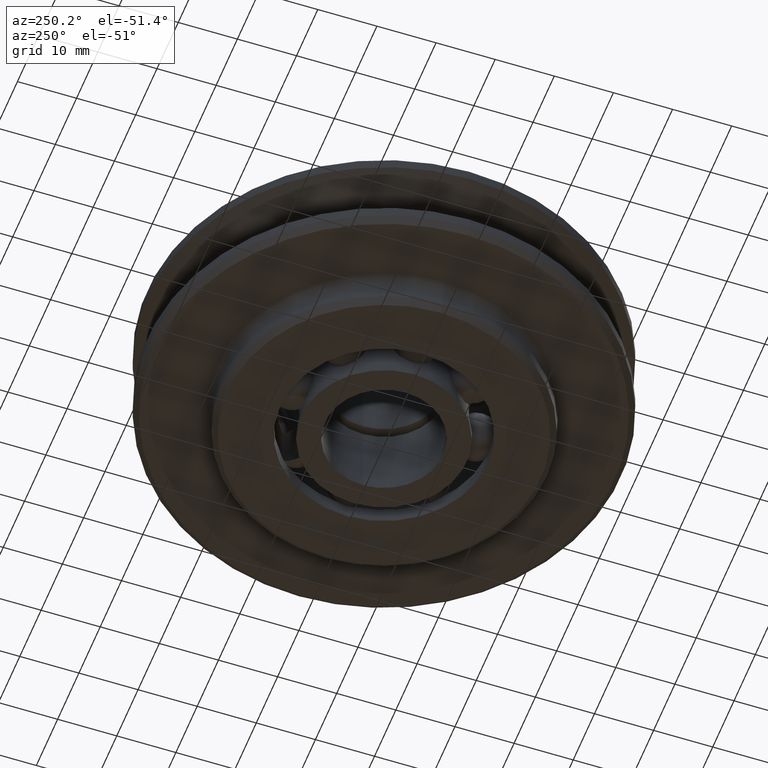
[diagram: clean part render]
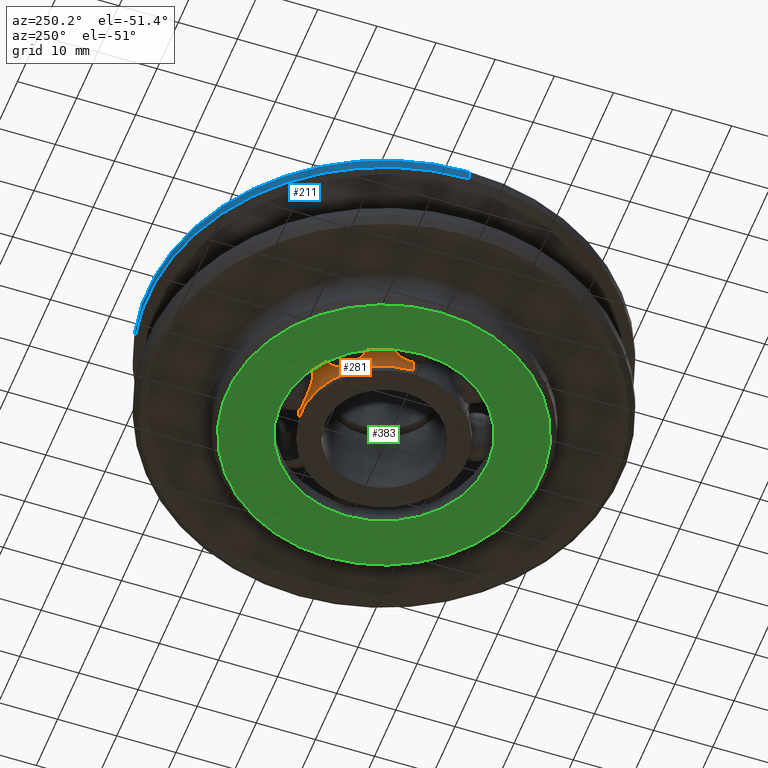
[diagram: same view with three faces highlighted in distinct colors, each labeled with its STEP entity id]
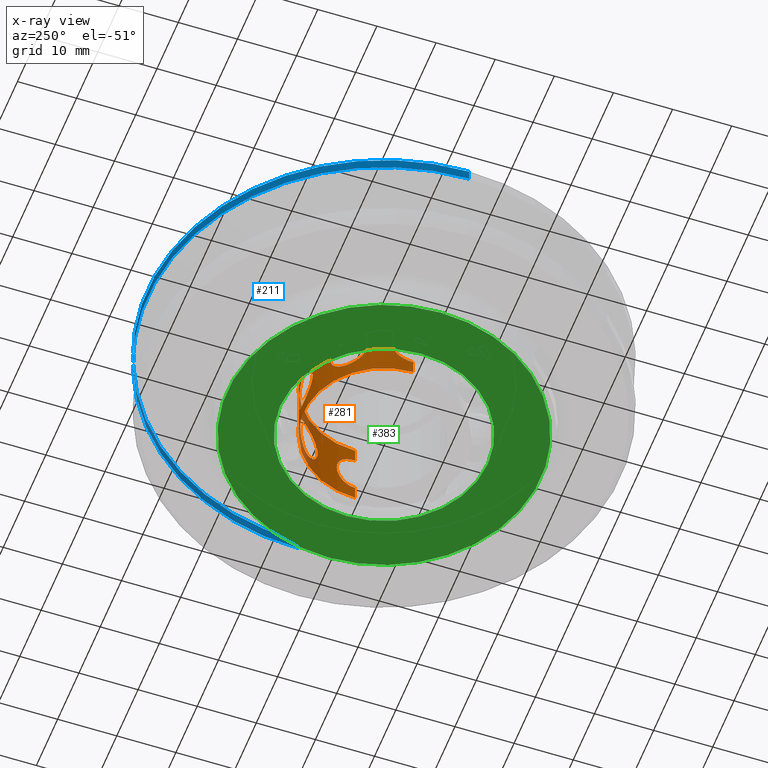
[diagram: x-ray of the same camera — body ghosted, the three highlighted faces saturated]
A machine part, auxiliary view with three faces highlighted in distinct colors.
The next image is the same camera in x-ray (body ghosted, the three faces saturated) — at least one of them is partly hidden behind the body in this view.
Their STEP definitions:

[orange] entity #281 — the highlighted cylindrical surface (partial cylindrical patch) has radius 13.6 mm, axis along (0, 0, -1).
#281=ADVANCED_FACE('',(#626,#627,#628,#629),#630,.T.);
#626=FACE_OUTER_BOUND('',#1036,.T.);
#627=FACE_BOUND('',#1037,.T.);
#628=FACE_BOUND('',#1038,.T.);
#629=FACE_BOUND('',#1039,.T.);
#630=CYLINDRICAL_SURFACE('',#1040,13.6);
#1036=EDGE_LOOP('',(#1907,#1908,#1909,#1910,#1911,#1912,#1913,#1914,#1915));
#1037=EDGE_LOOP('',(#1916,#1917,#1918));
#1038=EDGE_LOOP('',(#1919,#1920,#1921));
#1039=EDGE_LOOP('',(#1922,#1923,#1924));
#1040=AXIS2_PLACEMENT_3D('',#1925,#1926,#1927);
#1907=ORIENTED_EDGE('',*,*,#2924,.T.);
#1908=ORIENTED_EDGE('',*,*,#2964,.F.);
#1909=ORIENTED_EDGE('',*,*,#2965,.F.);
#1910=ORIENTED_EDGE('',*,*,#2931,.T.);
#1911=ORIENTED_EDGE('',*,*,#2949,.F.);
#1912=ORIENTED_EDGE('',*,*,#2929,.T.);
#1913=ORIENTED_EDGE('',*,*,#2871,.F.);
#1914=ORIENTED_EDGE('',*,*,#2926,.T.);
#1915=ORIENTED_EDGE('',*,*,#2966,.F.);
#1916=ORIENTED_EDGE('',*,*,#2967,.F.);
#1917=ORIENTED_EDGE('',*,*,#2968,.F.);
#1918=ORIENTED_EDGE('',*,*,#2880,.F.);
#1919=ORIENTED_EDGE('',*,*,#2969,.F.);
#1920=ORIENTED_EDGE('',*,*,#2970,.F.);
#1921=ORIENTED_EDGE('',*,*,#2894,.F.);
#1922=ORIENTED_EDGE('',*,*,#2971,.F.);
#1923=ORIENTED_EDGE('',*,*,#2972,.F.);
#1924=ORIENTED_EDGE('',*,*,#2915,.F.);
#1925=CARTESIAN_POINT('',(0.0,0.0,-7.0));
#1926=DIRECTION('',(0.0,0.0,-1.0));
#1927=DIRECTION('',(1.0,0.0,0.0));
#2871=EDGE_CURVE('',#3618,#3621,#3622,.T.);
#2880=EDGE_CURVE('',#3633,#3636,#3637,.T.);
#2894=EDGE_CURVE('',#3659,#3661,#3662,.T.);
#2915=EDGE_CURVE('',#3693,#3695,#3696,.T.);
#2924=EDGE_CURVE('',#3708,#3553,#3709,.T.);
#2926=EDGE_CURVE('',#3618,#3710,#3712,.T.);
#2929=EDGE_CURVE('',#3716,#3621,#3717,.T.);
#2931=EDGE_CURVE('',#3555,#3718,#3720,.T.);
#2949=EDGE_CURVE('',#3716,#3718,#3750,.T.);
#2964=EDGE_CURVE('',#3765,#3553,#3766,.T.);
#2965=EDGE_CURVE('',#3555,#3765,#3767,.T.);
#2966=EDGE_CURVE('',#3708,#3710,#3768,.T.);
#2967=EDGE_CURVE('',#3769,#3633,#3770,.T.);
#2968=EDGE_CURVE('',#3636,#3769,#3771,.T.);
#2969=EDGE_CURVE('',#3772,#3659,#3773,.T.);
#2970=EDGE_CURVE('',#3661,#3772,#3774,.T.);
#2971=EDGE_CURVE('',#3775,#3693,#3776,.T.);
#2972=EDGE_CURVE('',#3695,#3775,#3777,.T.);
#3553=VERTEX_POINT('',#6102);
#3555=VERTEX_POINT('',#6104);
#3618=VERTEX_POINT('',#6469);
#3621=VERTEX_POINT('',#6472);
#3622=B_SPLINE_CURVE_WITH_KNOTS('',3,(#6473,#6474,#6475,#6476,#6477,#6478,#6479,#6480,#6481,#6482,#6483,#6484,#6485,#6486,#6487,#6488,#6489,#6490,#6491,#6492,#6493,#6494,#6495,#6496,#6497,#6498,#6499,#6500,#6501,#6502,#6503,#6504,#6505,#6506),.UNSPECIFIED.,.F.,.F.,(4,2,2,2,2,2,2,2,2,2,2,2,2,2,2,2,4),(5.11884378408548,5.51801321408463,5.91718264408379,6.31635207408295,6.71552150408211,7.59606302010432,8.47660453612653,9.35714605214875,10.237687568171,11.1182290841932,11.9987706002154,12.8793121162376,13.7598536322598,14.159023062259,14.5581924922581,14.9573619222573,15.3565313522564),.UNSPECIFIED.);
#3633=VERTEX_POINT('',#6561);
#3636=VERTEX_POINT('',#6564);
#3637=B_SPLINE_CURVE_WITH_KNOTS('',3,(#6565,#6566,#6567,#6568,#6569,#6570,#6571,#6572,#6573,#6574,#6575,#6576,#6577,#6578,#6579,#6580,#6581,#6582,#6583,#6584,#6585,#6586,#6587,#6588,#6589,#6590,#6591,#6592,#6593,#6594,#6595,#6596,#6597,#6598),.UNSPECIFIED.,.F.,.F.,(4,2,2,2,2,2,2,2,2,2,2,2,2,2,2,2,4),(5.11884378408547,5.51801321408463,5.91718264408379,6.31635207408295,6.7155215040821,7.59606302010432,8.47660453612653,9.35714605214874,10.237687568171,11.1182290841932,11.9987706002154,12.8793121162376,13.7598536322598,14.159023062259,14.5581924922581,14.9573619222573,15.3565313522564),.UNSPECIFIED.);
#3659=VERTEX_POINT('',#6708);
#3661=VERTEX_POINT('',#6710);
#3662=B_SPLINE_CURVE_WITH_KNOTS('',3,(#6711,#6712,#6713,#6714,#6715,#6716,#6717,#6718,#6719,#6720,#6721,#6722,#6723,#6724,#6725,#6726,#6727,#6728,#6729,#6730,#6731,#6732,#6733,#6734,#6735,#6736,#6737,#6738,#6739,#6740,#6741,#6742,#6743,#6744),.UNSPECIFIED.,.F.,.F.,(4,2,2,2,2,2,2,2,2,2,2,2,2,2,2,2,4),(5.11884378408548,5.51801321408464,5.9171826440838,6.31635207408296,6.71552150408211,7.59606302010432,8.47660453612654,9.35714605214875,10.237687568171,11.1182290841932,11.9987706002154,12.8793121162376,13.7598536322598,14.159023062259,14.5581924922581,14.9573619222573,15.3565313522564),.UNSPECIFIED.);
#3693=VERTEX_POINT('',#6857);
#3695=VERTEX_POINT('',#6859);
#3696=B_SPLINE_CURVE_WITH_KNOTS('',3,(#6860,#6861,#6862,#6863,#6864,#6865,#6866,#6867,#6868,#6869,#6870,#6871,#6872,#6873,#6874,#6875,#6876,#6877,#6878,#6879,#6880,#6881,#6882,#6883,#6884,#6885,#6886,#6887,#6888,#6889,#6890,#6891,#6892,#6893),.UNSPECIFIED.,.F.,.F.,(4,2,2,2,2,2,2,2,2,2,2,2,2,2,2,2,4),(5.11884378408547,5.51801321408463,5.91718264408379,6.31635207408294,6.7155215040821,7.59606302010431,8.47660453612653,9.35714605214874,10.237687568171,11.1182290841932,11.9987706002154,12.8793121162376,13.7598536322598,14.159023062259,14.5581924922581,14.9573619222573,15.3565313522564),.UNSPECIFIED.);
#3708=VERTEX_POINT('',#7007);
#3709=LINE('',#7008,#7009);
#3710=VERTEX_POINT('',#7010);
#3712=LINE('',#7012,#7013);
#3716=VERTEX_POINT('',#7051);
#3717=LINE('',#7052,#7053);
#3718=VERTEX_POINT('',#7054);
#3720=LINE('',#7056,#7057);
#3750=CIRCLE('',#7093,13.6);
#3765=VERTEX_POINT('',#7108);
#3766=B_SPLINE_CURVE_WITH_KNOTS('',3,(#7109,#7110,#7111,#7112,#7113,#7114,#7115,#7116,#7117,#7118,#7119,#7120,#7121,#7122,#7123,#7124,#7125,#7126),.UNSPECIFIED.,.F.,.F.,(4,2,2,2,2,2,2,2,4),(0.0,0.880541516022214,1.76108303204443,2.64162454806664,3.52216606408886,3.92133549408801,4.32050492408717,4.71967435408632,5.11884378408548),.UNSPECIFIED.);
#3767=B_SPLINE_CURVE_WITH_KNOTS('',3,(#7127,#7128,#7129,#7130,#7131,#7132,#7133,#7134,#7135,#7136,#7137,#7138,#7139,#7140,#7141,#7142,#7143,#7144),.UNSPECIFIED.,.F.,.F.,(4,2,2,2,2,2,2,2,4),(15.3565313522564,15.7557007822556,16.1548702122548,16.5540396422539,16.9532090722531,17.8337505882753,18.7142921042975,19.5948336203197,20.4753751363419),.UNSPECIFIED.);
#3768=CIRCLE('',#7145,13.6);
#3769=VERTEX_POINT('',#7146);
#3770=B_SPLINE_CURVE_WITH_KNOTS('',3,(#7147,#7148,#7149,#7150,#7151,#7152,#7153,#7154,#7155,#7156,#7157,#7158,#7159,#7160,#7161,#7162,#7163,#7164),.UNSPECIFIED.,.F.,.F.,(4,2,2,2,2,2,2,2,4),(0.0,0.880541516022213,1.76108303204443,2.64162454806664,3.52216606408885,3.92133549408801,4.32050492408716,4.71967435408632,5.11884378408547),.UNSPECIFIED.);
#3771=B_SPLINE_CURVE_WITH_KNOTS('',3,(#7165,#7166,#7167,#7168,#7169,#7170,#7171,#7172,#7173,#7174,#7175,#7176,#7177,#7178,#7179,#7180,#7181,#7182),.UNSPECIFIED.,.F.,.F.,(4,2,2,2,2,2,2,2,4),(15.3565313522564,15.7557007822556,16.1548702122547,16.5540396422539,16.953209072253,17.8337505882753,18.7142921042975,19.5948336203197,20.4753751363419),.UNSPECIFIED.);
#3772=VERTEX_POINT('',#7183);
#3773=B_SPLINE_CURVE_WITH_KNOTS('',3,(#7184,#7185,#7186,#7187,#7188,#7189,#7190,#7191,#7192,#7193,#7194,#7195,#7196,#7197,#7198,#7199,#7200,#7201),.UNSPECIFIED.,.F.,.F.,(4,2,2,2,2,2,2,2,4),(0.0,0.880541516022215,1.76108303204443,2.64162454806664,3.52216606408886,3.92133549408802,4.32050492408717,4.71967435408633,5.11884378408548),.UNSPECIFIED.);
#3774=B_SPLINE_CURVE_WITH_KNOTS('',3,(#7202,#7203,#7204,#7205,#7206,#7207,#7208,#7209,#7210,#7211,#7212,#7213,#7214,#7215,#7216,#7217,#7218,#7219),.UNSPECIFIED.,.F.,.F.,(4,2,2,2,2,2,2,2,4),(15.3565313522564,15.7557007822556,16.1548702122548,16.5540396422539,16.9532090722531,17.8337505882753,18.7142921042975,19.5948336203197,20.4753751363419),.UNSPECIFIED.);
#3775=VERTEX_POINT('',#7220);
#3776=B_SPLINE_CURVE_WITH_KNOTS('',3,(#7221,#7222,#7223,#7224,#7225,#7226,#7227,#7228,#7229,#7230,#7231,#7232,#7233,#7234,#7235,#7236,#7237,#7238),.UNSPECIFIED.,.F.,.F.,(4,2,2,2,2,2,2,2,4),(0.0,0.880541516022213,1.76108303204443,2.64162454806664,3.52216606408885,3.92133549408801,4.32050492408716,4.71967435408632,5.11884378408547),.UNSPECIFIED.);
#3777=B_SPLINE_CURVE_WITH_KNOTS('',3,(#7239,#7240,#7241,#7242,#7243,#7244,#7245,#7246,#7247,#7248,#7249,#7250,#7251,#7252,#7253,#7254,#7255,#7256),.UNSPECIFIED.,.F.,.F.,(4,2,2,2,2,2,2,2,4),(15.3565313522564,15.7557007822556,16.1548702122547,16.5540396422539,16.953209072253,17.8337505882753,18.7142921042975,19.5948336203197,20.4753751363419),.UNSPECIFIED.);
#6102=CARTESIAN_POINT('',(13.6,8.25820929516293E-016,-3.52557918495759));
#6104=CARTESIAN_POINT('',(13.6,8.327598234202E-016,-10.4744208150424));
#6469=CARTESIAN_POINT('',(-13.6,-1.66542709188907E-015,-3.52557918495759));
#6472=CARTESIAN_POINT('',(-13.6,-1.6931826675047E-015,-10.4744208150424));
#6473=CARTESIAN_POINT('',(-13.6,-1.66533453693773E-015,-3.52557918495759));
#6474=CARTESIAN_POINT('',(-13.6,0.133056476666384,-3.52557918495758));
#6475=CARTESIAN_POINT('',(-13.5980055949989,0.271707385761775,-3.53443566578162));
#6476=CARTESIAN_POINT('',(-13.5895360727834,0.551443914183474,-3.57252557018243));
#6477=CARTESIAN_POINT('',(-13.5830617961631,0.692529474987496,-3.60175961045754));
#6478=CARTESIAN_POINT('',(-13.5661500191705,0.968884924298131,-3.67979320654764));
#6479=CARTESIAN_POINT('',(-13.5557126732144,1.10427590195003,-3.72862432216197));
#6480=CARTESIAN_POINT('',(-13.5322258131544,1.36221726826129,-3.84186666432335));
#6481=CARTESIAN_POINT('',(-13.5191882204582,1.48477073564192,-3.9062733503762));
#6482=CARTESIAN_POINT('',(-13.4762482873043,1.84769157317782,-4.12628894471587));
#6483=CARTESIAN_POINT('',(-13.4416816527091,2.07940766338172,-4.31461867790565));
#6484=CARTESIAN_POINT('',(-13.3722648655813,2.48702115072024,-4.75069955585992));
#6485=CARTESIAN_POINT('',(-13.3375294426858,2.66294674167266,-4.9984426023022));
#6486=CARTESIAN_POINT('',(-13.2777950706208,2.94637594930855,-5.53218860418191));
#6487=CARTESIAN_POINT('',(-13.2528229399806,3.05418339474074,-5.8187738890709));
#6488=CARTESIAN_POINT('',(-13.219198442041,3.19658327422026,-6.40591608579654));
#6489=CARTESIAN_POINT('',(-13.2105935483871,3.23113263412587,-6.70648616132593));
#6490=CARTESIAN_POINT('',(-13.2105935483871,3.23113263412587,-7.29351383867407));
#6491=CARTESIAN_POINT('',(-13.219198442041,3.19658327422026,-7.59408391420346));
#6492=CARTESIAN_POINT('',(-13.2528229399806,3.05418339474075,-8.1812261109291));
#6493=CARTESIAN_POINT('',(-13.2777950706208,2.94637594930854,-8.46781139581809));
#6494=CARTESIAN_POINT('',(-13.3375294426858,2.66294674167265,-9.0015573976978));
#6495=CARTESIAN_POINT('',(-13.3722648655813,2.48702115072023,-9.24930044414008));
#6496=CARTESIAN_POINT('',(-13.4416816527091,2.07940766338172,-9.68538132209435));
#6497=CARTESIAN_POINT('',(-13.4762482873043,1.84769157317782,-9.87371105528413));
#6498=CARTESIAN_POINT('',(-13.5191882204582,1.48477073564192,-10.0937266496238));
#6499=CARTESIAN_POINT('',(-13.5322258131544,1.36221726826129,-10.1581333356767));
#6500=CARTESIAN_POINT('',(-13.5557126732144,1.10427590195004,-10.271375677838));
#6501=CARTESIAN_POINT('',(-13.5661500191705,0.968884924298133,-10.3202067934524));
#6502=CARTESIAN_POINT('',(-13.5830617961631,0.692529474987497,-10.3982403895425));
#6503=CARTESIAN_POINT('',(-13.5895360727834,0.551443914183474,-10.4274744298176));
#6504=CARTESIAN_POINT('',(-13.5980055949989,0.271707385761774,-10.4655643342184));
#6505=CARTESIAN_POINT('',(-13.6,0.133056476666384,-10.4744208150424));
#6506=CARTESIAN_POINT('',(-13.6,-1.6931826675047E-015,-10.4744208150424));
#6561=CARTESIAN_POINT('',(-9.61665222413705,9.61665222413705,-3.52557918495759));
#6564=CARTESIAN_POINT('',(-9.61665222413705,9.61665222413705,-10.4744208150424));
#6565=CARTESIAN_POINT('',(-9.61665222413705,9.61665222413705,-3.52557918495759));
#6566=CARTESIAN_POINT('',(-9.52256708720545,9.71073736106864,-3.52557918495759));
#6567=CARTESIAN_POINT('',(-9.42311583186574,9.80736810180698,-3.53443566578163));
#6568=CARTESIAN_POINT('',(-9.21932337908113,9.9991828414075,-3.57252557018244));
#6569=CARTESIAN_POINT('',(-9.11498281740763,10.0943673932781,-3.60175961045754));
#6570=CARTESIAN_POINT('',(-8.90761157298885,10.2778217733101,-3.67979320654765));
#6571=CARTESIAN_POINT('',(-8.80449537647654,10.3661773336161,-3.72862432216197));
#6572=CARTESIAN_POINT('',(-8.60549556919218,10.5319617048661,-3.84186666432335));
#6573=CARTESIAN_POINT('',(-8.50961821114352,10.609401122503,-3.90627335037621));
#6574=CARTESIAN_POINT('',(-8.22263130797122,10.8356617898418,-4.12628894471588));
#6575=CARTESIAN_POINT('',(-8.03434098755291,10.9750675068099,-4.31461867790566));
#6576=CARTESIAN_POINT('',(-7.69702964564653,11.2142086869038,-4.75069955585992));
#6577=CARTESIAN_POINT('',(-7.548069814223,11.3140452121737,-4.99844260230221));
#6578=CARTESIAN_POINT('',(-7.30541651996024,11.4722213473223,-5.53218860418191));
#6579=CARTESIAN_POINT('',(-7.21152718131637,11.5307947601334,-5.81877388907091));
#6580=CARTESIAN_POINT('',(-7.08705915038918,11.6077105700465,-6.40591608579654));
#6581=CARTESIAN_POINT('',(-7.05654448506021,11.6260560780673,-6.70648616132593));
#6582=CARTESIAN_POINT('',(-7.05654448506021,11.6260560780673,-7.29351383867407));
#6583=CARTESIAN_POINT('',(-7.08705915038918,11.6077105700465,-7.59408391420346));
#6584=CARTESIAN_POINT('',(-7.21152718131637,11.5307947601334,-8.18122611092909));
#6585=CARTESIAN_POINT('',(-7.30541651996024,11.4722213473223,-8.46781139581809));
#6586=CARTESIAN_POINT('',(-7.548069814223,11.3140452121737,-9.0015573976978));
#6587=CARTESIAN_POINT('',(-7.69702964564653,11.2142086869038,-9.24930044414008));
#6588=CARTESIAN_POINT('',(-8.03434098755291,10.9750675068099,-9.68538132209435));
#6589=CARTESIAN_POINT('',(-8.22263130797122,10.8356617898418,-9.87371105528413));
#6590=CARTESIAN_POINT('',(-8.50961821114352,10.609401122503,-10.0937266496238));
#6591=CARTESIAN_POINT('',(-8.60549556919218,10.5319617048661,-10.1581333356767));
#6592=CARTESIAN_POINT('',(-8.80449537647654,10.3661773336161,-10.271375677838));
#6593=CARTESIAN_POINT('',(-8.90761157298885,10.2778217733101,-10.3202067934524));
#6594=CARTESIAN_POINT('',(-9.11498281740763,10.0943673932781,-10.3982403895425));
#6595=CARTESIAN_POINT('',(-9.21932337908112,9.9991828414075,-10.4274744298176));
#6596=CARTESIAN_POINT('',(-9.42311583186574,9.80736810180698,-10.4655643342184));
#6597=CARTESIAN_POINT('',(-9.52256708720546,9.71073736106864,-10.4744208150424));
#6598=CARTESIAN_POINT('',(-9.61665222413705,9.61665222413705,-10.4744208150424));
#6708=CARTESIAN_POINT('',(2.06617063291693E-015,13.6,-3.52557918495759));
#6710=CARTESIAN_POINT('',(2.02453726949349E-015,13.6,-10.4744208150424));
#6711=CARTESIAN_POINT('',(3.89965837399586E-015,13.6,-3.52557918495759));
#6712=CARTESIAN_POINT('',(0.133056476666389,13.6,-3.52557918495759));
#6713=CARTESIAN_POINT('',(0.271707385761779,13.5980055949989,-3.53443566578162));
#6714=CARTESIAN_POINT('',(0.551443914183478,13.5895360727834,-3.57252557018243));
#6715=CARTESIAN_POINT('',(0.6925294749875,13.5830617961631,-3.60175961045754));
#6716=CARTESIAN_POINT('',(0.968884924298136,13.5661500191705,-3.67979320654764));
#6717=CARTESIAN_POINT('',(1.10427590195004,13.5557126732144,-3.72862432216197));
#6718=CARTESIAN_POINT('',(1.36221726826129,13.5322258131544,-3.84186666432335));
#6719=CARTESIAN_POINT('',(1.48477073564192,13.5191882204582,-3.9062733503762));
#6720=CARTESIAN_POINT('',(1.84769157317783,13.4762482873043,-4.12628894471587));
#6721=CARTESIAN_POINT('',(2.07940766338172,13.4416816527091,-4.31461867790565));
#6722=CARTESIAN_POINT('',(2.48702115072024,13.3722648655813,-4.75069955585992));
#6723=CARTESIAN_POINT('',(2.66294674167266,13.3375294426858,-4.9984426023022));
#6724=CARTESIAN_POINT('',(2.94637594930855,13.2777950706208,-5.53218860418191));
#6725=CARTESIAN_POINT('',(3.05418339474075,13.2528229399806,-5.81877388907091));
#6726=CARTESIAN_POINT('',(3.19658327422026,13.219198442041,-6.40591608579654));
#6727=CARTESIAN_POINT('',(3.23113263412587,13.2105935483871,-6.70648616132593));
#6728=CARTESIAN_POINT('',(3.23113263412587,13.2105935483871,-7.29351383867407));
#6729=CARTESIAN_POINT('',(3.19658327422026,13.219198442041,-7.59408391420346));
#6730=CARTESIAN_POINT('',(3.05418339474075,13.2528229399806,-8.18122611092909));
#6731=CARTESIAN_POINT('',(2.94637594930855,13.2777950706208,-8.46781139581809));
#6732=CARTESIAN_POINT('',(2.66294674167266,13.3375294426858,-9.00155739769779));
#6733=CARTESIAN_POINT('',(2.48702115072024,13.3722648655813,-9.24930044414008));
#6734=CARTESIAN_POINT('',(2.07940766338173,13.4416816527091,-9.68538132209434));
#6735=CARTESIAN_POINT('',(1.84769157317783,13.4762482873043,-9.87371105528413));
#6736=CARTESIAN_POINT('',(1.48477073564192,13.5191882204582,-10.0937266496238));
#6737=CARTESIAN_POINT('',(1.36221726826129,13.5322258131544,-10.1581333356767));
#6738=CARTESIAN_POINT('',(1.10427590195004,13.5557126732144,-10.271375677838));
#6739=CARTESIAN_POINT('',(0.968884924298135,13.5661500191705,-10.3202067934524));
#6740=CARTESIAN_POINT('',(0.6925294749875,13.5830617961631,-10.3982403895425));
#6741=CARTESIAN_POINT('',(0.551443914183478,13.5895360727834,-10.4274744298176));
#6742=CARTESIAN_POINT('',(0.271707385761779,13.5980055949989,-10.4655643342184));
#6743=CARTESIAN_POINT('',(0.133056476666388,13.6,-10.4744208150424));
#6744=CARTESIAN_POINT('',(2.02453726949349E-015,13.6,-10.4744208150424));
#6857=CARTESIAN_POINT('',(9.61665222413705,9.61665222413705,-3.52557918495759));
#6859=CARTESIAN_POINT('',(9.61665222413705,9.61665222413705,-10.4744208150424));
#6860=CARTESIAN_POINT('',(9.61665222413705,9.61665222413705,-3.52557918495759));
#6861=CARTESIAN_POINT('',(9.71073736106863,9.52256708720545,-3.52557918495759));
#6862=CARTESIAN_POINT('',(9.80736810180698,9.42311583186574,-3.53443566578163));
#6863=CARTESIAN_POINT('',(9.9991828414075,9.21932337908112,-3.57252557018244));
#6864=CARTESIAN_POINT('',(10.0943673932781,9.11498281740763,-3.60175961045754));
#6865=CARTESIAN_POINT('',(10.2778217733101,8.90761157298885,-3.67979320654765));
#6866=CARTESIAN_POINT('',(10.3661773336161,8.80449537647654,-3.72862432216197));
#6867=CARTESIAN_POINT('',(10.5319617048661,8.60549556919218,-3.84186666432335));
#6868=CARTESIAN_POINT('',(10.609401122503,8.50961821114352,-3.9062733503762));
#6869=CARTESIAN_POINT('',(10.8356617898418,8.22263130797122,-4.12628894471587));
#6870=CARTESIAN_POINT('',(10.9750675068099,8.03434098755291,-4.31461867790566));
#6871=CARTESIAN_POINT('',(11.2142086869038,7.69702964564653,-4.75069955585992));
#6872=CARTESIAN_POINT('',(11.3140452121737,7.548069814223,-4.99844260230221));
#6873=CARTESIAN_POINT('',(11.4722213473223,7.30541651996024,-5.53218860418191));
#6874=CARTESIAN_POINT('',(11.5307947601334,7.21152718131637,-5.81877388907091));
#6875=CARTESIAN_POINT('',(11.6077105700465,7.08705915038918,-6.40591608579654));
#6876=CARTESIAN_POINT('',(11.6260560780673,7.05654448506021,-6.70648616132593));
#6877=CARTESIAN_POINT('',(11.6260560780673,7.05654448506021,-7.29351383867407));
#6878=CARTESIAN_POINT('',(11.6077105700465,7.08705915038918,-7.59408391420346));
#6879=CARTESIAN_POINT('',(11.5307947601334,7.21152718131637,-8.18122611092909));
#6880=CARTESIAN_POINT('',(11.4722213473223,7.30541651996024,-8.46781139581809));
#6881=CARTESIAN_POINT('',(11.3140452121737,7.548069814223,-9.0015573976978));
#6882=CARTESIAN_POINT('',(11.2142086869038,7.69702964564653,-9.24930044414008));
#6883=CARTESIAN_POINT('',(10.9750675068099,8.03434098755291,-9.68538132209435));
#6884=CARTESIAN_POINT('',(10.8356617898418,8.22263130797122,-9.87371105528413));
#6885=CARTESIAN_POINT('',(10.609401122503,8.50961821114352,-10.0937266496238));
#6886=CARTESIAN_POINT('',(10.5319617048661,8.60549556919219,-10.1581333356767));
#6887=CARTESIAN_POINT('',(10.3661773336161,8.80449537647654,-10.271375677838));
#6888=CARTESIAN_POINT('',(10.2778217733101,8.90761157298886,-10.3202067934524));
#6889=CARTESIAN_POINT('',(10.0943673932781,9.11498281740763,-10.3982403895425));
#6890=CARTESIAN_POINT('',(9.9991828414075,9.21932337908112,-10.4274744298176));
#6891=CARTESIAN_POINT('',(9.80736810180698,9.42311583186574,-10.4655643342184));
#6892=CARTESIAN_POINT('',(9.71073736106864,9.52256708720546,-10.4744208150424));
#6893=CARTESIAN_POINT('',(9.61665222413705,9.61665222413705,-10.4744208150424));
#7007=CARTESIAN_POINT('',(13.6,0.0,-1.0));
#7008=CARTESIAN_POINT('',(13.6,1.6655196468404E-015,-7.0));
#7009=VECTOR('',#8562,1.0);
#7010=CARTESIAN_POINT('',(-13.6,-1.6655196468404E-015,-1.0));
#7012=CARTESIAN_POINT('',(-13.6,-1.6655196468404E-015,-7.0));
#7013=VECTOR('',#8566,1.0);
#7051=CARTESIAN_POINT('',(-13.6,-1.6655196468404E-015,-13.0));
#7052=CARTESIAN_POINT('',(-13.6,-1.6655196468404E-015,-7.0));
#7053=VECTOR('',#8567,1.0);
#7054=CARTESIAN_POINT('',(13.6,0.0,-13.0));
#7056=CARTESIAN_POINT('',(13.6,1.6655196468404E-015,-7.0));
#7057=VECTOR('',#8571,1.0);
#7093=AXIS2_PLACEMENT_3D('',#8599,#8600,#8601);
#7108=CARTESIAN_POINT('',(13.2105935483871,3.23113263412587,-7.0));
#7109=CARTESIAN_POINT('',(13.2105935483871,3.23113263412587,-7.0));
#7110=CARTESIAN_POINT('',(13.2105935483871,3.23113263412587,-6.70648616132593));
#7111=CARTESIAN_POINT('',(13.219198442041,3.19658327422026,-6.40591608579654));
#7112=CARTESIAN_POINT('',(13.2528229399806,3.05418339474075,-5.8187738890709));
#7113=CARTESIAN_POINT('',(13.2777950706208,2.94637594930855,-5.53218860418191));
#7114=CARTESIAN_POINT('',(13.3375294426858,2.66294674167265,-4.9984426023022));
#7115=CARTESIAN_POINT('',(13.3722648655813,2.48702115072023,-4.75069955585992));
#7116=CARTESIAN_POINT('',(13.4416816527091,2.07940766338172,-4.31461867790565));
#7117=CARTESIAN_POINT('',(13.4762482873043,1.84769157317782,-4.12628894471587));
#7118=CARTESIAN_POINT('',(13.5191882204582,1.48477073564191,-3.9062733503762));
#7119=CARTESIAN_POINT('',(13.5322258131545,1.36221726826128,-3.84186666432335));
#7120=CARTESIAN_POINT('',(13.5557126732144,1.10427590195003,-3.72862432216197));
#7121=CARTESIAN_POINT('',(13.5661500191705,0.968884924298131,-3.67979320654764));
#7122=CARTESIAN_POINT('',(13.5830617961631,0.692529474987496,-3.60175961045754));
#7123=CARTESIAN_POINT('',(13.5895360727834,0.551443914183474,-3.57252557018243));
#7124=CARTESIAN_POINT('',(13.5980055949989,0.271707385761776,-3.53443566578162));
#7125=CARTESIAN_POINT('',(13.6,0.133056476666386,-3.52557918495759));
#7126=CARTESIAN_POINT('',(13.6,8.25820929516293E-016,-3.52557918495759));
#7127=CARTESIAN_POINT('',(13.6,0.0,-10.4744208150424));
#7128=CARTESIAN_POINT('',(13.6,0.133056476666386,-10.4744208150424));
#7129=CARTESIAN_POINT('',(13.5980055949989,0.271707385761775,-10.4655643342184));
#7130=CARTESIAN_POINT('',(13.5895360727834,0.551443914183473,-10.4274744298176));
#7131=CARTESIAN_POINT('',(13.5830617961631,0.692529474987495,-10.3982403895425));
#7132=CARTESIAN_POINT('',(13.5661500191705,0.96888492429813,-10.3202067934524));
#7133=CARTESIAN_POINT('',(13.5557126732144,1.10427590195003,-10.271375677838));
#7134=CARTESIAN_POINT('',(13.5322258131544,1.36221726826129,-10.1581333356767));
#7135=CARTESIAN_POINT('',(13.5191882204582,1.48477073564192,-10.0937266496238));
#7136=CARTESIAN_POINT('',(13.4762482873043,1.84769157317782,-9.87371105528413));
#7137=CARTESIAN_POINT('',(13.4416816527091,2.07940766338172,-9.68538132209435));
#7138=CARTESIAN_POINT('',(13.3722648655813,2.48702115072023,-9.24930044414008));
#7139=CARTESIAN_POINT('',(13.3375294426858,2.66294674167265,-9.0015573976978));
#7140=CARTESIAN_POINT('',(13.2777950706208,2.94637594930854,-8.46781139581809));
#7141=CARTESIAN_POINT('',(13.2528229399806,3.05418339474074,-8.1812261109291));
#7142=CARTESIAN_POINT('',(13.219198442041,3.19658327422026,-7.59408391420346));
#7143=CARTESIAN_POINT('',(13.2105935483871,3.23113263412587,-7.29351383867407));
#7144=CARTESIAN_POINT('',(13.2105935483871,3.23113263412587,-7.0));
#7145=AXIS2_PLACEMENT_3D('',#8623,#8624,#8625);
#7146=CARTESIAN_POINT('',(-11.6260560780673,7.05654448506021,-7.0));
#7147=CARTESIAN_POINT('',(-11.6260560780673,7.05654448506021,-7.0));
#7148=CARTESIAN_POINT('',(-11.6260560780673,7.05654448506021,-6.70648616132593));
#7149=CARTESIAN_POINT('',(-11.6077105700465,7.08705915038918,-6.40591608579654));
#7150=CARTESIAN_POINT('',(-11.5307947601334,7.21152718131637,-5.81877388907091));
#7151=CARTESIAN_POINT('',(-11.4722213473223,7.30541651996024,-5.53218860418191));
#7152=CARTESIAN_POINT('',(-11.3140452121737,7.548069814223,-4.9984426023022));
#7153=CARTESIAN_POINT('',(-11.2142086869038,7.69702964564653,-4.75069955585992));
#7154=CARTESIAN_POINT('',(-10.9750675068099,8.03434098755291,-4.31461867790566));
#7155=CARTESIAN_POINT('',(-10.8356617898418,8.22263130797122,-4.12628894471587));
#7156=CARTESIAN_POINT('',(-10.609401122503,8.50961821114352,-3.9062733503762));
#7157=CARTESIAN_POINT('',(-10.5319617048661,8.60549556919218,-3.84186666432335));
#7158=CARTESIAN_POINT('',(-10.3661773336161,8.80449537647654,-3.72862432216197));
#7159=CARTESIAN_POINT('',(-10.2778217733101,8.90761157298885,-3.67979320654765));
#7160=CARTESIAN_POINT('',(-10.0943673932781,9.11498281740763,-3.60175961045754));
#7161=CARTESIAN_POINT('',(-9.9991828414075,9.21932337908112,-3.57252557018244));
#7162=CARTESIAN_POINT('',(-9.80736810180698,9.42311583186574,-3.53443566578163));
#7163=CARTESIAN_POINT('',(-9.71073736106864,9.52256708720546,-3.52557918495759));
#7164=CARTESIAN_POINT('',(-9.61665222413705,9.61665222413705,-3.52557918495759));
#7165=CARTESIAN_POINT('',(-9.61665222413705,9.61665222413705,-10.4744208150424));
#7166=CARTESIAN_POINT('',(-9.71073736106864,9.52256708720545,-10.4744208150424));
#7167=CARTESIAN_POINT('',(-9.80736810180698,9.42311583186574,-10.4655643342184));
#7168=CARTESIAN_POINT('',(-9.9991828414075,9.21932337908113,-10.4274744298176));
#7169=CARTESIAN_POINT('',(-10.0943673932781,9.11498281740763,-10.3982403895425));
#7170=CARTESIAN_POINT('',(-10.2778217733101,8.90761157298886,-10.3202067934524));
#7171=CARTESIAN_POINT('',(-10.3661773336161,8.80449537647654,-10.271375677838));
#7172=CARTESIAN_POINT('',(-10.5319617048661,8.60549556919219,-10.1581333356767));
#7173=CARTESIAN_POINT('',(-10.609401122503,8.50961821114352,-10.0937266496238));
#7174=CARTESIAN_POINT('',(-10.8356617898418,8.22263130797122,-9.87371105528413));
#7175=CARTESIAN_POINT('',(-10.9750675068099,8.03434098755291,-9.68538132209435));
#7176=CARTESIAN_POINT('',(-11.2142086869038,7.69702964564653,-9.24930044414009));
#7177=CARTESIAN_POINT('',(-11.3140452121737,7.548069814223,-9.0015573976978));
#7178=CARTESIAN_POINT('',(-11.4722213473223,7.30541651996024,-8.4678113958181));
#7179=CARTESIAN_POINT('',(-11.5307947601334,7.21152718131637,-8.1812261109291));
#7180=CARTESIAN_POINT('',(-11.6077105700465,7.08705915038918,-7.59408391420347));
#7181=CARTESIAN_POINT('',(-11.6260560780673,7.05654448506021,-7.29351383867407));
#7182=CARTESIAN_POINT('',(-11.6260560780673,7.05654448506021,-7.0));
#7183=CARTESIAN_POINT('',(-3.23113263412587,13.2105935483871,-7.0));
#7184=CARTESIAN_POINT('',(-3.23113263412587,13.2105935483871,-7.0));
#7185=CARTESIAN_POINT('',(-3.23113263412587,13.2105935483871,-6.70648616132593));
#7186=CARTESIAN_POINT('',(-3.19658327422026,13.219198442041,-6.40591608579654));
#7187=CARTESIAN_POINT('',(-3.05418339474074,13.2528229399806,-5.8187738890709));
#7188=CARTESIAN_POINT('',(-2.94637594930854,13.2777950706208,-5.53218860418191));
#7189=CARTESIAN_POINT('',(-2.66294674167265,13.3375294426858,-4.9984426023022));
#7190=CARTESIAN_POINT('',(-2.48702115072023,13.3722648655813,-4.75069955585991));
#7191=CARTESIAN_POINT('',(-2.07940766338172,13.4416816527091,-4.31461867790565));
#7192=CARTESIAN_POINT('',(-1.84769157317782,13.4762482873043,-4.12628894471586));
#7193=CARTESIAN_POINT('',(-1.48477073564191,13.5191882204582,-3.90627335037619));
#7194=CARTESIAN_POINT('',(-1.36221726826128,13.5322258131545,-3.84186666432335));
#7195=CARTESIAN_POINT('',(-1.10427590195003,13.5557126732144,-3.72862432216196));
#7196=CARTESIAN_POINT('',(-0.968884924298126,13.5661500191705,-3.67979320654764));
#7197=CARTESIAN_POINT('',(-0.692529474987491,13.5830617961631,-3.60175961045754));
#7198=CARTESIAN_POINT('',(-0.55144391418347,13.5895360727834,-3.57252557018243));
#7199=CARTESIAN_POINT('',(-0.271707385761771,13.5980055949989,-3.53443566578162));
#7200=CARTESIAN_POINT('',(-0.133056476666383,13.6,-3.52557918495759));
#7201=CARTESIAN_POINT('',(2.06617063291693E-015,13.6,-3.52557918495759));
#7202=CARTESIAN_POINT('',(3.81639164714898E-015,13.6,-10.4744208150424));
#7203=CARTESIAN_POINT('',(-0.133056476666382,13.6,-10.4744208150424));
#7204=CARTESIAN_POINT('',(-0.271707385761772,13.5980055949989,-10.4655643342184));
#7205=CARTESIAN_POINT('',(-0.551443914183471,13.5895360727834,-10.4274744298176));
#7206=CARTESIAN_POINT('',(-0.692529474987493,13.5830617961631,-10.3982403895425));
#7207=CARTESIAN_POINT('',(-0.968884924298128,13.5661500191705,-10.3202067934524));
#7208=CARTESIAN_POINT('',(-1.10427590195003,13.5557126732144,-10.271375677838));
#7209=CARTESIAN_POINT('',(-1.36221726826128,13.5322258131545,-10.1581333356767));
#7210=CARTESIAN_POINT('',(-1.48477073564191,13.5191882204582,-10.0937266496238));
#7211=CARTESIAN_POINT('',(-1.84769157317782,13.4762482873043,-9.87371105528414));
#7212=CARTESIAN_POINT('',(-2.07940766338172,13.4416816527091,-9.68538132209435));
#7213=CARTESIAN_POINT('',(-2.48702115072023,13.3722648655813,-9.24930044414008));
#7214=CARTESIAN_POINT('',(-2.66294674167266,13.3375294426858,-9.0015573976978));
#7215=CARTESIAN_POINT('',(-2.94637594930855,13.2777950706208,-8.46781139581809));
#7216=CARTESIAN_POINT('',(-3.05418339474074,13.2528229399806,-8.1812261109291));
#7217=CARTESIAN_POINT('',(-3.19658327422026,13.219198442041,-7.59408391420346));
#7218=CARTESIAN_POINT('',(-3.23113263412587,13.2105935483871,-7.29351383867407));
#7219=CARTESIAN_POINT('',(-3.23113263412587,13.2105935483871,-7.0));
#7220=CARTESIAN_POINT('',(7.05654448506021,11.6260560780673,-7.0));
#7221=CARTESIAN_POINT('',(7.05654448506021,11.6260560780673,-7.0));
#7222=CARTESIAN_POINT('',(7.05654448506021,11.6260560780673,-6.70648616132593));
#7223=CARTESIAN_POINT('',(7.08705915038918,11.6077105700465,-6.40591608579654));
#7224=CARTESIAN_POINT('',(7.21152718131637,11.5307947601334,-5.81877388907091));
#7225=CARTESIAN_POINT('',(7.30541651996024,11.4722213473223,-5.53218860418191));
#7226=CARTESIAN_POINT('',(7.548069814223,11.3140452121737,-4.9984426023022));
#7227=CARTESIAN_POINT('',(7.69702964564653,11.2142086869038,-4.75069955585992));
#7228=CARTESIAN_POINT('',(8.03434098755291,10.9750675068099,-4.31461867790566));
#7229=CARTESIAN_POINT('',(8.22263130797122,10.8356617898418,-4.12628894471587));
#7230=CARTESIAN_POINT('',(8.50961821114352,10.609401122503,-3.9062733503762));
#7231=CARTESIAN_POINT('',(8.60549556919218,10.5319617048661,-3.84186666432335));
#7232=CARTESIAN_POINT('',(8.80449537647654,10.3661773336161,-3.72862432216197));
#7233=CARTESIAN_POINT('',(8.90761157298885,10.2778217733101,-3.67979320654765));
#7234=CARTESIAN_POINT('',(9.11498281740763,10.0943673932781,-3.60175961045754));
#7235=CARTESIAN_POINT('',(9.21932337908112,9.9991828414075,-3.57252557018244));
#7236=CARTESIAN_POINT('',(9.42311583186574,9.80736810180698,-3.53443566578163));
#7237=CARTESIAN_POINT('',(9.52256708720546,9.71073736106864,-3.52557918495759));
#7238=CARTESIAN_POINT('',(9.61665222413705,9.61665222413705,-3.52557918495759));
#7239=CARTESIAN_POINT('',(9.61665222413705,9.61665222413705,-10.4744208150424));
#7240=CARTESIAN_POINT('',(9.52256708720545,9.71073736106864,-10.4744208150424));
#7241=CARTESIAN_POINT('',(9.42311583186574,9.80736810180698,-10.4655643342184));
#7242=CARTESIAN_POINT('',(9.21932337908112,9.9991828414075,-10.4274744298176));
#7243=CARTESIAN_POINT('',(9.11498281740763,10.0943673932781,-10.3982403895425));
#7244=CARTESIAN_POINT('',(8.90761157298886,10.2778217733101,-10.3202067934524));
#7245=CARTESIAN_POINT('',(8.80449537647654,10.3661773336161,-10.271375677838));
#7246=CARTESIAN_POINT('',(8.60549556919219,10.5319617048661,-10.1581333356767));
#7247=CARTESIAN_POINT('',(8.50961821114352,10.609401122503,-10.0937266496238));
#7248=CARTESIAN_POINT('',(8.22263130797122,10.8356617898418,-9.87371105528413));
#7249=CARTESIAN_POINT('',(8.03434098755291,10.9750675068099,-9.68538132209435));
#7250=CARTESIAN_POINT('',(7.69702964564653,11.2142086869038,-9.24930044414009));
#7251=CARTESIAN_POINT('',(7.548069814223,11.3140452121737,-9.0015573976978));
#7252=CARTESIAN_POINT('',(7.30541651996024,11.4722213473223,-8.4678113958181));
#7253=CARTESIAN_POINT('',(7.21152718131637,11.5307947601334,-8.1812261109291));
#7254=CARTESIAN_POINT('',(7.08705915038918,11.6077105700465,-7.59408391420347));
#7255=CARTESIAN_POINT('',(7.05654448506021,11.6260560780673,-7.29351383867407));
#7256=CARTESIAN_POINT('',(7.05654448506021,11.6260560780673,-7.0));
#8562=DIRECTION('',(0.0,0.0,-1.0));
#8566=DIRECTION('',(-0.0,-0.0,1.0));
#8567=DIRECTION('',(-0.0,-0.0,1.0));
#8571=DIRECTION('',(0.0,0.0,-1.0));
#8599=CARTESIAN_POINT('',(0.0,0.0,-13.0));
#8600=DIRECTION('',(0.0,0.0,-1.0));
#8601=DIRECTION('',(1.0,0.0,0.0));
#8623=CARTESIAN_POINT('',(0.0,0.0,-1.0));
#8624=DIRECTION('',(0.0,0.0,1.0));
#8625=DIRECTION('',(1.0,0.0,0.0));

[blue] entity #211 — the highlighted cylindrical surface (partial cylindrical patch) has radius 40 mm, axis along (0, 0, 1).
#211=ADVANCED_FACE('',(#511),#512,.T.);
#511=FACE_OUTER_BOUND('',#921,.T.);
#512=CYLINDRICAL_SURFACE('',#922,40.0);
#921=EDGE_LOOP('',(#1475,#1476,#1477,#1478));
#922=AXIS2_PLACEMENT_3D('',#1479,#1480,#1481);
#1475=ORIENTED_EDGE('',*,*,#2706,.F.);
#1476=ORIENTED_EDGE('',*,*,#2654,.T.);
#1477=ORIENTED_EDGE('',*,*,#2707,.F.);
#1478=ORIENTED_EDGE('',*,*,#2702,.F.);
#1479=CARTESIAN_POINT('',(0.0,0.0,6.0989575));
#1480=DIRECTION('',(0.0,0.0,1.0));
#1481=DIRECTION('',(1.0,0.0,0.0));
#2654=EDGE_CURVE('',#3259,#3261,#3263,.T.);
#2702=EDGE_CURVE('',#3334,#3337,#3338,.T.);
#2706=EDGE_CURVE('',#3259,#3334,#3343,.T.);
#2707=EDGE_CURVE('',#3337,#3261,#3344,.T.);
#3259=VERTEX_POINT('',#4908);
#3261=VERTEX_POINT('',#4911);
#3263=CIRCLE('',#4914,40.0);
#3334=VERTEX_POINT('',#4999);
#3337=VERTEX_POINT('',#5003);
#3338=CIRCLE('',#5004,40.0);
#3343=LINE('',#5010,#5011);
#3344=LINE('',#5012,#5013);
#4908=CARTESIAN_POINT('',(40.0,0.0,5.197915));
#4911=CARTESIAN_POINT('',(-40.0,4.89858719658941E-015,5.197915));
#4914=AXIS2_PLACEMENT_3D('',#8210,#8211,#8212);
#4999=CARTESIAN_POINT('',(40.0,0.0,7.0));
#5003=CARTESIAN_POINT('',(-40.0,4.89858719658941E-015,7.0));
#5004=AXIS2_PLACEMENT_3D('',#8291,#8292,#8293);
#5010=CARTESIAN_POINT('',(40.0,-4.89858719658941E-015,6.0989575));
#5011=VECTOR('',#8298,1.0);
#5012=CARTESIAN_POINT('',(-40.0,4.89858719658941E-015,6.0989575));
#5013=VECTOR('',#8299,1.0);
#8210=CARTESIAN_POINT('',(0.0,0.0,5.197915));
#8211=DIRECTION('',(0.0,0.0,1.0));
#8212=DIRECTION('',(1.0,0.0,0.0));
#8291=CARTESIAN_POINT('',(0.0,0.0,7.0));
#8292=DIRECTION('',(0.0,0.0,1.0));
#8293=DIRECTION('',(1.0,0.0,0.0));
#8298=DIRECTION('',(0.0,0.0,1.0));
#8299=DIRECTION('',(-0.0,-0.0,-1.0));

[green] entity #383 — the highlighted planar face has unit normal (-0, 0, -1).
#383=ADVANCED_FACE('',(#791,#792),#793,.T.);
#791=FACE_BOUND('',#1201,.T.);
#792=FACE_OUTER_BOUND('',#1202,.T.);
#793=PLANE('',#1203);
#1201=EDGE_LOOP('',(#2483,#2484));
#1202=EDGE_LOOP('',(#2485,#2486));
#1203=AXIS2_PLACEMENT_3D('',#2487,#2488,#2489);
#2483=ORIENTED_EDGE('',*,*,#2986,.T.);
#2484=ORIENTED_EDGE('',*,*,#2898,.T.);
#2485=ORIENTED_EDGE('',*,*,#2684,.F.);
#2486=ORIENTED_EDGE('',*,*,#3086,.F.);
#2487=CARTESIAN_POINT('',(13.25,0.0,-13.0));
#2488=DIRECTION('',(-0.0,0.0,-1.0));
#2489=DIRECTION('',(-1.0,-0.0,0.0));
#2684=EDGE_CURVE('',#3306,#3308,#3309,.T.);
#2898=EDGE_CURVE('',#3667,#3665,#3668,.T.);
#2986=EDGE_CURVE('',#3665,#3667,#3795,.T.);
#3086=EDGE_CURVE('',#3308,#3306,#3903,.T.);
#3306=VERTEX_POINT('',#4965);
#3308=VERTEX_POINT('',#4968);
#3309=CIRCLE('',#4969,26.5);
#3665=VERTEX_POINT('',#6747);
#3667=VERTEX_POINT('',#6750);
#3668=CIRCLE('',#6751,17.55);
#3795=CIRCLE('',#7345,17.55);
#3903=CIRCLE('',#8078,26.5);
#4965=CARTESIAN_POINT('',(26.5,0.0,-13.0));
#4968=CARTESIAN_POINT('',(-26.5,3.24531401774049E-015,-13.0));
#4969=AXIS2_PLACEMENT_3D('',#8261,#8262,#8263);
#6747=CARTESIAN_POINT('',(17.55,0.0,-13.0));
#6750=CARTESIAN_POINT('',(-17.55,-2.1492551325036E-015,-13.0));
#6751=AXIS2_PLACEMENT_3D('',#8534,#8535,#8536);
#7345=AXIS2_PLACEMENT_3D('',#8638,#8639,#8640);
#8078=AXIS2_PLACEMENT_3D('',#8692,#8693,#8694);
#8261=CARTESIAN_POINT('',(0.0,0.0,-13.0));
#8262=DIRECTION('',(0.0,0.0,1.0));
#8263=DIRECTION('',(1.0,0.0,0.0));
#8534=CARTESIAN_POINT('',(0.0,0.0,-13.0));
#8535=DIRECTION('',(0.0,-0.0,1.0));
#8536=DIRECTION('',(1.0,0.0,0.0));
#8638=CARTESIAN_POINT('',(0.0,0.0,-13.0));
#8639=DIRECTION('',(0.0,-0.0,1.0));
#8640=DIRECTION('',(1.0,0.0,0.0));
#8692=CARTESIAN_POINT('',(0.0,0.0,-13.0));
#8693=DIRECTION('',(0.0,0.0,1.0));
#8694=DIRECTION('',(1.0,0.0,0.0));